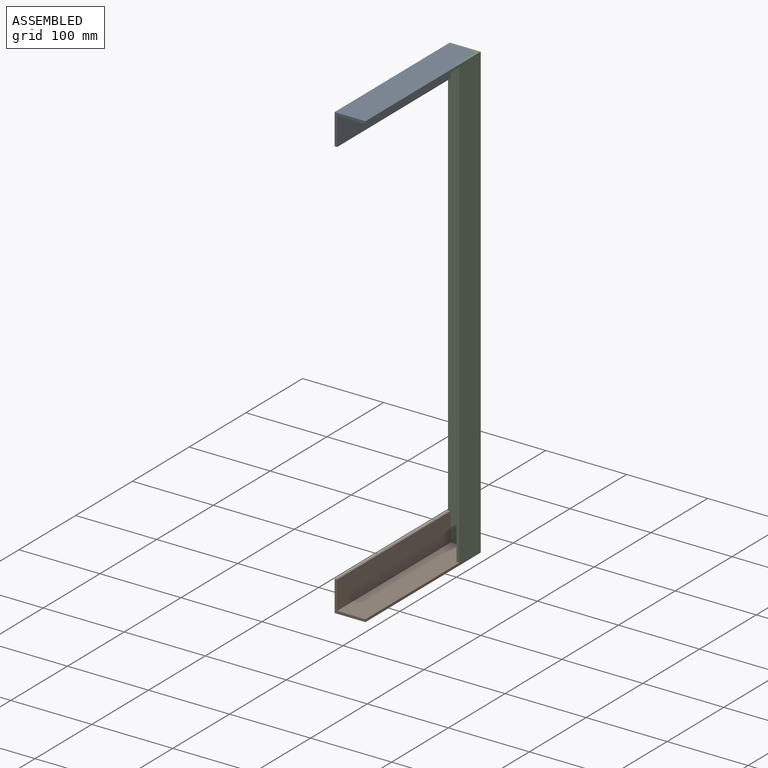
[diagram: assembled view]
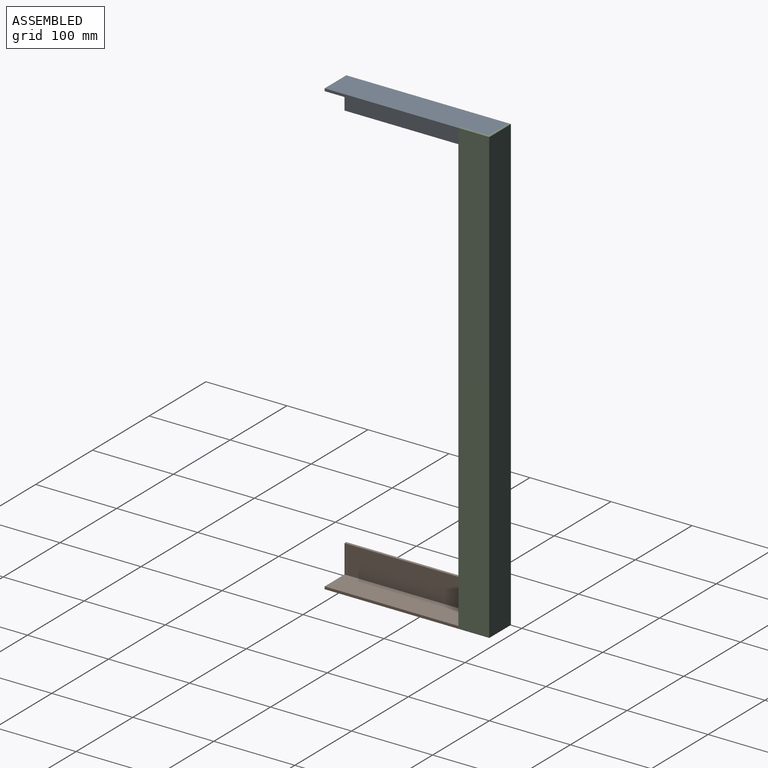
[diagram: assembled view, second angle]
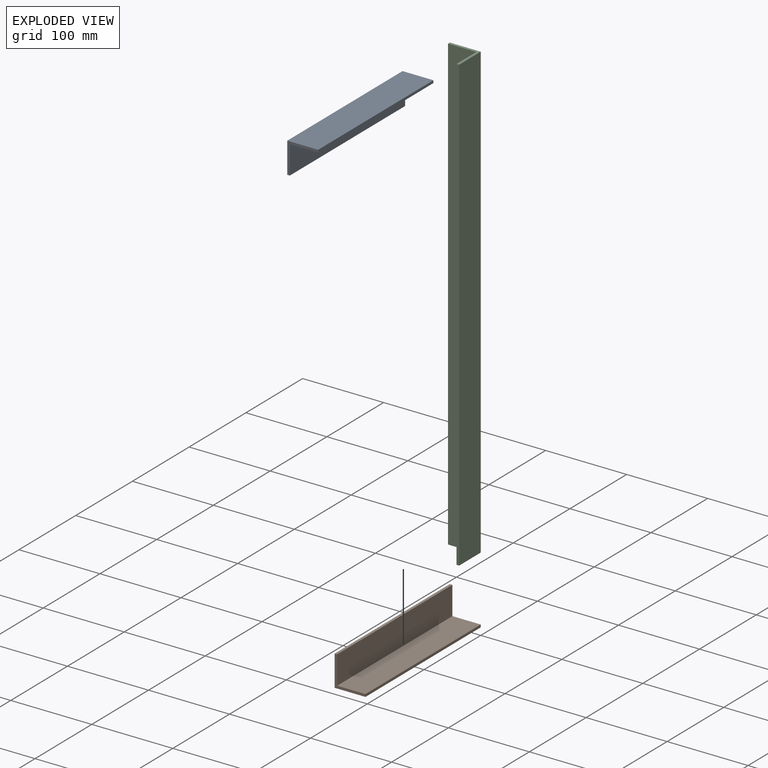
[diagram: exploded view]
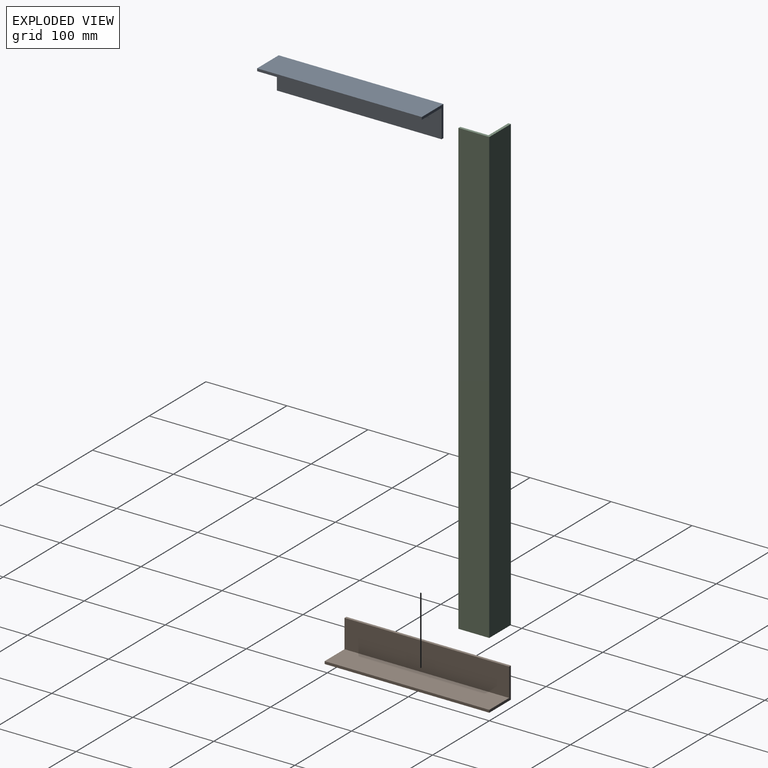
[diagram: exploded view, second angle]
ASSEMBLY  parts=3 mates=6
PART A: 8 faces, bbox 38.1x203.2x38.1 mm
  f0: plane 203.2x38.1mm, normal (-1,0,0), area 7741.9mm2, adj f1,f5,f6,f7
  f1: plane 203.2x38.1mm, normal (0,0,-1), area 7741.9mm2, adj f0,f2,f6,f7
  f2: plane 203.2x3.18mm, normal (1,0,0), area 645.2mm2, adj f1,f3,f6,f7
  f3: plane 203.2x34.93mm, normal (0,0,1), area 7096.8mm2, adj f2,f4,f6,f7
  f4: plane 203.2x34.93mm, normal (1,0,0), area 7096.8mm2, adj f3,f5,f6,f7
  f5: plane 203.2x3.18mm, normal (0,0,1), area 645.2mm2, adj f0,f4,f6,f7
  f6: plane 38.1x38.1mm, normal (0,-1,0), area 231.9mm2, adj f0,f1,f2,f3,f4,f5
  f7: plane 38.1x38.1mm, normal (0,1,0), area 231.9mm2, adj f0,f1,f2,f3,f4,f5
PART B: same geometry as A
PART C: 8 faces, bbox 38.1x558.8x38.1 mm
  f0: plane 558.8x38.1mm, normal (-1,0,0), area 21290.3mm2, adj f1,f5,f6,f7
  f1: plane 558.8x38.1mm, normal (0,0,-1), area 21290.3mm2, adj f0,f2,f6,f7
  f2: plane 558.8x3.18mm, normal (1,0,0), area 1774.2mm2, adj f1,f3,f6,f7
  f3: plane 558.8x34.93mm, normal (0,0,1), area 19516.1mm2, adj f2,f4,f6,f7
  f4: plane 558.8x34.93mm, normal (1,0,0), area 19516.1mm2, adj f3,f5,f6,f7
  f5: plane 558.8x3.18mm, normal (0,0,1), area 1774.2mm2, adj f0,f4,f6,f7
  f6: plane 38.1x38.1mm, normal (0,-1,0), area 231.9mm2, adj f0,f1,f2,f3,f4,f5
  f7: plane 38.1x38.1mm, normal (0,1,0), area 231.9mm2, adj f0,f1,f2,f3,f4,f5
PLACE A rot(axis=(0,1,0),90deg) t=(-38.1,0,604.76)mm
PLACE B t=(-84.06,0,0)mm
PLACE C rot(axis=(0,-0.71,0.71),180deg) t=(0,0,0)mm
MATE planar C.f7 <-> B.f1  axis (0,0,-1) through (-3.17,-20.64,0)mm
MATE planar A.f7 <-> C.f1  axis (0,1,0) through (0,0,558.8)mm
MATE planar C.f1 <-> B.f7  axis (0,1,0) through (-19.05,0,0)mm
MATE planar B.f2 <-> C.f0  axis (1,0,0) through (0,-101.6,1.59)mm
MATE planar A.f5 <-> C.f0  axis (1,0,0) through (0,0,557.21)mm
MATE planar C.f6 <-> A.f0  axis (0,0,1) through (-10.7,-10.7,558.8)mm
